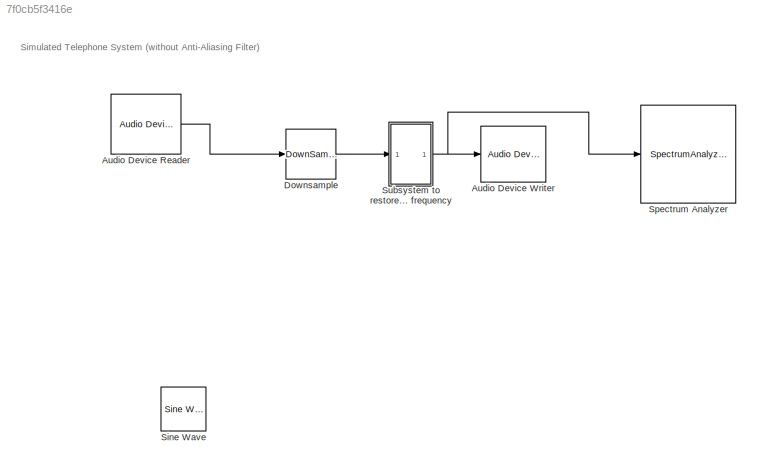
MODEL slx_7f0cb5f3416e
KIND model
CONFIG AbsTol = auto
CONFIG EnableMultiTasking = on
CONFIG FixedStep = auto
CONFIG MaxStep = auto
CONFIG MinStep = auto
CONFIG RelTol = 1e-3
CONFIG SampleTimeConstraint = Unconstrained
CONFIG SolverName = VariableStepAuto
CONFIG StartTime = 0.0
CONFIG StopTime = inf
BLOCK [Reference] Audio Device Reader  REF=audiosources/Audio Device
Reader
  SourceBlock = audiosources/Audio Device\nReader
  SourceType = Audio Device Reader
BLOCK [Reference] Audio Device Writer  REF=dspsnks4/Audio Device
Writer
  SourceBlock = dspsnks4/Audio Device\nWriter
  SourceType = Audio Device Writer
BLOCK [DownSample] Downsample
  N = 6
  NameLocation = top
BLOCK [Reference] Sine Wave  REF=dspsrcs4/Sine Wave
  SourceBlock = dspsrcs4/Sine Wave
  SourceType = Sine Wave
BLOCK [SpectrumAnalyzer] Spectrum Analyzer
  AllowFFTLengthLessThanSamplesPerUpdate = on
  AveragingMethod = Running
  AxesScaling = Manual
  DefaultConfigurationName = spbscopes.SpectrumAnalyzerBlockCfg
  GraphicalSettings = {"GraphicalSettings":{"Style":{"AxesColor":"[0 0 0]","DisplayName":"","LabelsColor":"[0.686274509803922 0.686274509803922 0.686274509803922]","LineStyle":"-","LineWidth":"0.5","Marker":"none","MarkerEdgeColor":"auto","MarkerFaceColor":"none","MarkerSize":"6","Measurements":"struct","MinPeakDistance":"1","MinPeakHeight":"-Inf","OnceAtStop":"false","PeaksPanelOpen":"1","SettingsPanelOpen":"1","SortA...<+119ch>
  Method = Welch
  SampleRate = 48000
  ScopeSpecificationString = spbscopes.SpectrumAnalyzerBlockCfg('CurrentConfiguration', extmgr.ConfigurationSet(extmgr.Configuration('Core','General UI',true),extmgr.Configuration('Core','Source UI',true),extmgr.Configuration('Sources','WiredSimulink',true),extmgr.Configuration('Visuals','Spectrum',true,'AxesProperties',struct('Color',[0 0 0],'XColor',[0.686274509803922 0.686274509803922 0.686274509803922],'YColor',[0.6862745...<+1418ch>
  ShowGrid = off
  Span = 48000
  StartFrequency = -24000
  StopFrequency = 24000
  WasSavedAsWebScope = on
  WindowPosition = [28 81 800 450]
  YLabel = dBm
  YLimits = [-276.22585847664374,20]
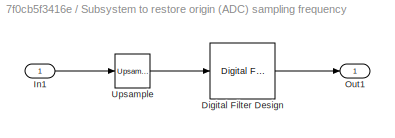
BLOCK [SubSystem] Subsystem to restore origin (ADC) sampling frequency
BLOCK [Reference] Subsystem to restore origin (ADC) sampling frequency/Digital Filter Design  REF=dsparch4/Digital
Filter Design
  SourceBlock = dsparch4/Digital\nFilter Design
  SourceProductName = DSP System Toolbox
  SourceType = Digital Filter Design
  UserDataPersistent = on
BLOCK [Inport] Subsystem to restore origin (ADC) sampling frequency/In1
BLOCK [Outport] Subsystem to restore origin (ADC) sampling frequency/Out1
BLOCK [Reference] Subsystem to restore origin (ADC) sampling frequency/Upsample  REF=dspsigops/Upsample
  SourceBlock = dspsigops/Upsample
  SourceProductName = DSP System Toolbox
  SourceType = Upsample
  UserDataPersistent = on
ANNOTATION (root): Simulated Telephone System (without Anti-Aliasing Filter)
LINE Audio Device Reader:1 -> Downsample:1
LINE Downsample:1 -> Subsystem to restore origin (ADC) sampling frequency:1
LINE Subsystem to restore origin (ADC) sampling frequency/Digital Filter Design:1 -> Subsystem to restore origin (ADC) sampling frequency/Out1:1
LINE Subsystem to restore origin (ADC) sampling frequency/In1:1 -> Subsystem to restore origin (ADC) sampling frequency/Upsample:1
LINE Subsystem to restore origin (ADC) sampling frequency/Upsample:1 -> Subsystem to restore origin (ADC) sampling frequency/Digital Filter Design:1
NET Subsystem to restore origin (ADC) sampling frequency:1 -> Audio Device Writer:1, Spectrum Analyzer:1
note: NET lines group one-source signal fan-out (src -> all destinations, sorted); 1:1 wires keep LINE
